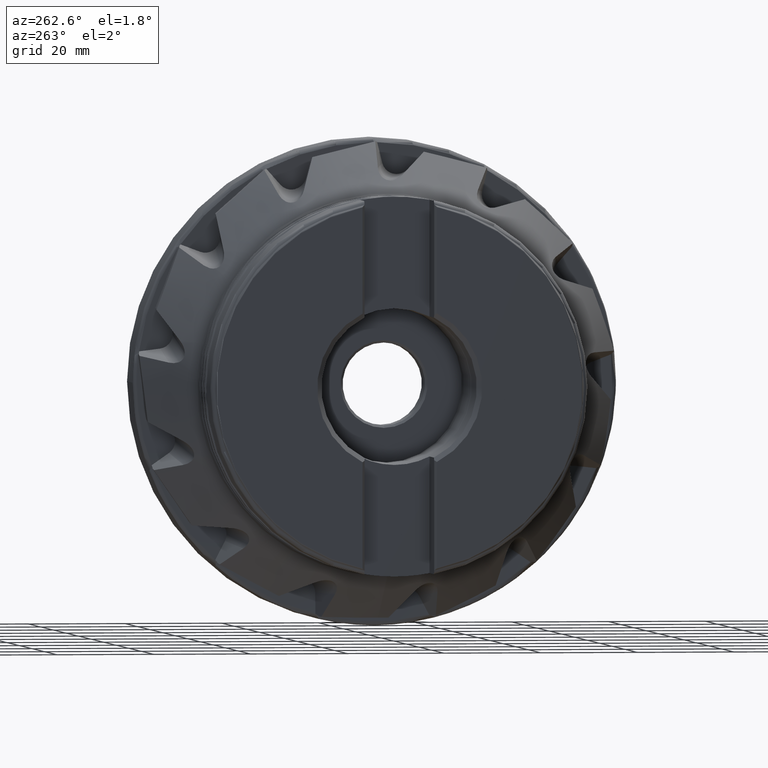
[diagram: clean part render]
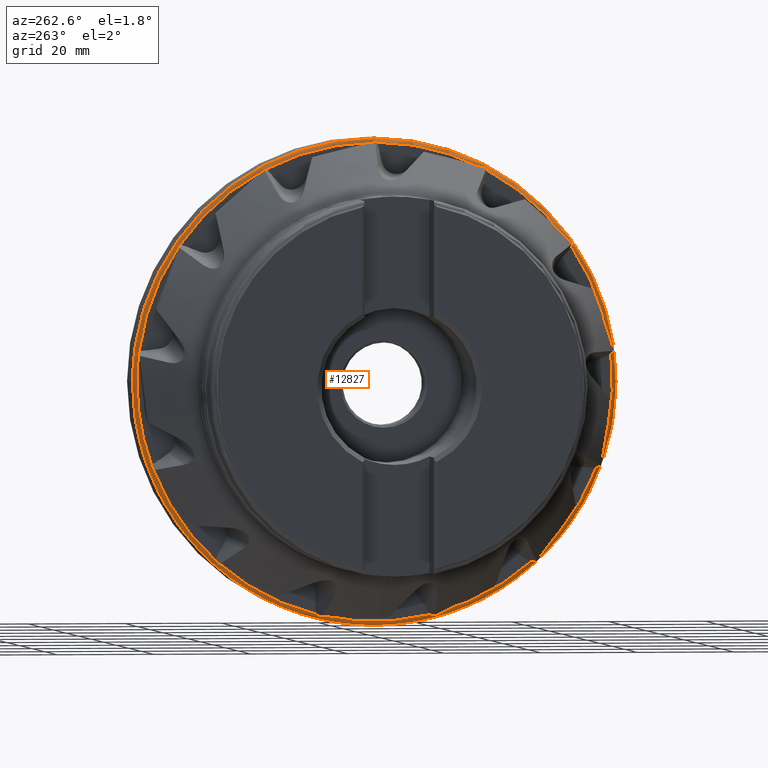
[diagram: same view with one face highlighted and labeled with its STEP entity id]
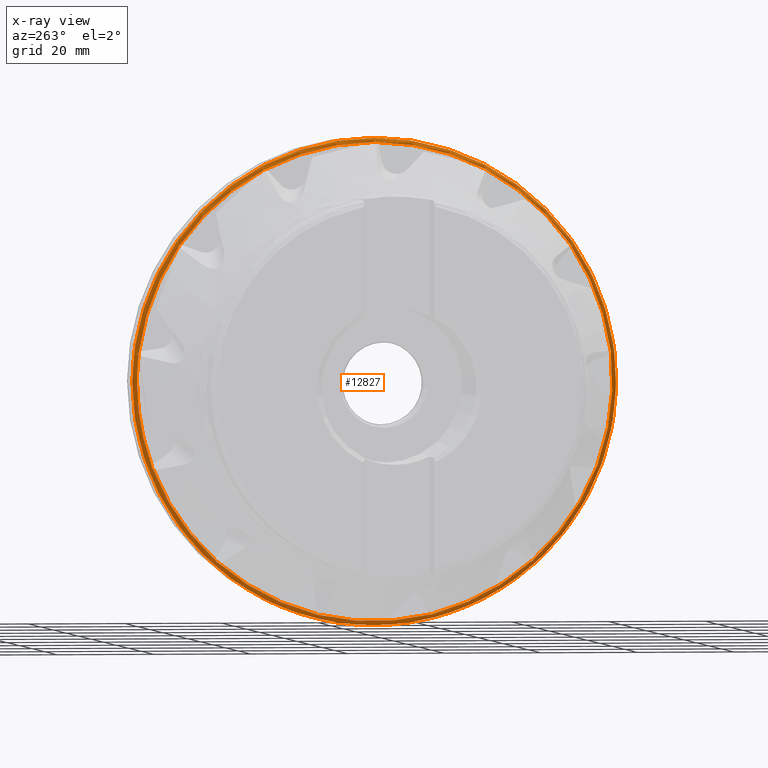
[diagram: x-ray of the same camera — body ghosted, the highlighted face saturated]
A machine part, auxiliary view. The second image highlights one B-rep face of the part: STEP entity #12827.
The next image is the same camera in x-ray: the body ghosted, the highlighted face saturated — about 0% of this face is hidden behind the body in this view.
In plain terms, the highlighted toroidal blend (fillet) surface has major radius 49.1892 mm and minor (blend) radius 0.8 mm.
Its self-contained STEP definition (entity closure, byte-faithful):
#8 = CARTESIAN_POINT ( 'NONE',  ( -9.529555263469744000, -0.3690522359355521400, 49.16599106609748300 ) ) ;
#62 = ORIENTED_EDGE ( 'NONE', *, *, #986, .T. ) ;
#73 = B_SPLINE_CURVE_WITH_KNOTS ( 'NONE', 3,
 ( #3012, #3986, #10963, #4997 ),
 .UNSPECIFIED., .F., .F.,
 ( 4, 4 ),
 ( 0.003973531200708417500, 0.004359960465216587000 ),
 .UNSPECIFIED. ) ;
#113 = VERTEX_POINT ( 'NONE', #297 ) ;
#178 = CARTESIAN_POINT ( 'NONE',  ( -9.527000476006922000, -3.366713401751077900E-013, 49.25675642812401400 ) ) ;
#229 = CARTESIAN_POINT ( 'NONE',  ( -9.527000476006877600, 48.89761921548504400, 5.937245899991292000 ) ) ;
#297 = CARTESIAN_POINT ( 'NONE',  ( -9.527000476006866900, -32.66327125893650400, -36.86921160649718800 ) ) ;
#301 = B_SPLINE_CURVE_WITH_KNOTS ( 'NONE', 3,
 ( #6147, #1213, #8182, #2210 ),
 .UNSPECIFIED., .F., .F.,
 ( 4, 4 ),
 ( 3.798845344109975500E-005, 0.0004180356619418391600 ),
 .UNSPECIFIED. ) ;
#302 = CARTESIAN_POINT ( 'NONE',  ( -9.530359929648117400, -48.80796984753448000, 6.174344194009345100 ) ) ;
#418 = CARTESIAN_POINT ( 'NONE',  ( -9.529555263469749300, 40.67246296300684300, 27.62574222690248900 ) ) ;
#430 = ORIENTED_EDGE ( 'NONE', *, *, #6085, .T. ) ;
#476 = ORIENTED_EDGE ( 'NONE', *, *, #5592, .T. ) ;
#495 = CARTESIAN_POINT ( 'NONE',  ( -9.527000476006911400, 11.78791338524697200, -47.82544460683508400 ) ) ;
#501 = EDGE_CURVE ( 'NONE', #11045, #4005, #12489, .T. ) ;
#586 = EDGE_CURVE ( 'NONE', #7956, #9342, #8381, .T. ) ;
#684 = CARTESIAN_POINT ( 'NONE',  ( -9.527000476006897100, 46.05586732229521400, -17.46668654927648100 ) ) ;
#699 = B_SPLINE_CURVE_WITH_KNOTS ( 'NONE', 3,
 ( #10317, #7297, #11309, #5337 ),
 .UNSPECIFIED., .F., .F.,
 ( 4, 4 ),
 ( 7.582066673529437800E-005, 0.0004558755601862572000 ),
 .UNSPECIFIED. ) ;
#708 = VERTEX_POINT ( 'NONE', #10142 ) ;
#778 = CARTESIAN_POINT ( 'NONE',  ( -9.530359931118614000, -12.01247672379837500, -47.70786995004623800 ) ) ;
#788 = B_SPLINE_CURVE_WITH_KNOTS ( 'NONE', 3,
 ( #3315, #9274, #5303, #12251 ),
 .UNSPECIFIED., .F., .F.,
 ( 4, 4 ),
 ( 0.003973405056481388300, 0.004359791218350853000 ),
 .UNSPECIFIED. ) ;
#807 = CARTESIAN_POINT ( 'NONE',  ( -9.529555263469744000, 0.3690522359348623000, 49.16599106609749000 ) ) ;
#820 = EDGE_CURVE ( 'NONE', #2797, #10428, #5781, .T. ) ;
#845 = CIRCLE ( 'NONE', #9418, 49.16737614581875000 ) ;
#860 = ORIENTED_EDGE ( 'NONE', *, *, #5242, .T. ) ;
#961 = CARTESIAN_POINT ( 'NONE',  ( -9.529555263469744000, -2.261813270860574400E-015, 0.0000000000000000000 ) ) ;
#986 = EDGE_CURVE ( 'NONE', #10224, #7956, #4438, .T. ) ;
#1012 = CARTESIAN_POINT ( 'NONE',  ( -9.527000476006911400, 11.78791338524697200, -47.82544460683508400 ) ) ;
#1057 = EDGE_CURVE ( 'NONE', #4312, #10224, #788, .T. ) ;
#1141 = CARTESIAN_POINT ( 'NONE',  ( -9.529555263469744000, -2.261813270860574400E-015, 0.0000000000000000000 ) ) ;
#1200 = ORIENTED_EDGE ( 'NONE', *, *, #1422, .T. ) ;
#1213 = CARTESIAN_POINT ( 'NONE',  ( -9.529552357068366700, -11.66122848706423700, -47.82563648373594100 ) ) ;
#1233 = CARTESIAN_POINT ( 'NONE',  ( -9.527000476006877600, 48.89761921548504400, 5.937245899991292000 ) ) ;
#1288 = DIRECTION ( 'NONE',  ( 1.000000000000000000, 1.224983210366505700E-016, -0.0000000000000000000 ) ) ;
#1371 = ORIENTED_EDGE ( 'NONE', *, *, #11529, .T. ) ;
#1397 = CARTESIAN_POINT ( 'NONE',  ( -9.527000476006907800, -48.89761921548513600, 5.937245899990601000 ) ) ;
#1402 = CIRCLE ( 'NONE', #4222, 49.16737614581875000 ) ;
#1422 = EDGE_CURVE ( 'NONE', #1866, #5831, #8687, .T. ) ;
#1443 = CARTESIAN_POINT ( 'NONE',  ( -9.529552363207638900, -45.98405983653486800, -17.57105542612537300 ) ) ;
#1487 = CARTESIAN_POINT ( 'NONE',  ( -9.527000476006890000, -40.53751582659995700, 27.98102686514012700 ) ) ;
#1656 = VERTEX_POINT ( 'NONE', #9145 ) ;
#1672 = CIRCLE ( 'NONE', #4488, 49.16737614581875000 ) ;
#1693 = ORIENTED_EDGE ( 'NONE', *, *, #2544, .T. ) ;
#1772 = ORIENTED_EDGE ( 'NONE', *, *, #6009, .T. ) ;
#1782 = CARTESIAN_POINT ( 'NONE',  ( -9.529555263469744000, -2.261813270860574400E-015, 0.0000000000000000000 ) ) ;
#1784 = FACE_OUTER_BOUND ( 'NONE', #7649, .T. ) ;
#1820 = DIRECTION ( 'NONE',  ( 1.000000000000000000, 1.224983210366505700E-016, -0.0000000000000000000 ) ) ;
#1863 = AXIS2_PLACEMENT_3D ( 'NONE', #8218, #2232, #9210 ) ;
#1866 = VERTEX_POINT ( 'NONE', #11747 ) ;
#1944 = DIRECTION ( 'NONE',  ( -1.058460067605822300E-016, 1.000000000000000000, 0.0000000000000000000 ) ) ;
#2012 = DIRECTION ( 'NONE',  ( 1.000000000000000000, 1.224983210366505700E-016, -0.0000000000000000000 ) ) ;
#2055 = DIRECTION ( 'NONE',  ( -1.058460067605822300E-016, 1.000000000000000000, 0.0000000000000000000 ) ) ;
#2131 = CARTESIAN_POINT ( 'NONE',  ( -9.529552349694753800, -22.98570806334397400, 43.53082802121889500 ) ) ;
#2148 = CARTESIAN_POINT ( 'NONE',  ( -9.527000476006898900, 32.66327125893703000, -36.86921160649674100 ) ) ;
#2153 = DIRECTION ( 'NONE',  ( -1.058460067605822300E-016, 1.000000000000000000, 0.0000000000000000000 ) ) ;
#2210 = CARTESIAN_POINT ( 'NONE',  ( -9.529555263469742200, -11.40786356365526400, -47.82563670226935000 ) ) ;
#2232 = DIRECTION ( 'NONE',  ( 1.000000000000000000, 1.224983210366505700E-016, -0.0000000000000000000 ) ) ;
#2245 = VERTEX_POINT ( 'NONE', #8945 ) ;
#2282 = DIRECTION ( 'NONE',  ( 1.000000000000000000, 1.224983210366505700E-016, -0.0000000000000000000 ) ) ;
#2300 = VERTEX_POINT ( 'NONE', #8993 ) ;
#2412 = VERTEX_POINT ( 'NONE', #7461 ) ;
#2436 = CARTESIAN_POINT ( 'NONE',  ( -9.527000476006897100, 46.05586732229521400, -17.46668654927648100 ) ) ;
#2456 = CARTESIAN_POINT ( 'NONE',  ( -9.527000476006893600, 22.89075609186480900, 43.61469178341502600 ) ) ;
#2544 = EDGE_CURVE ( 'NONE', #12380, #2797, #9228, .T. ) ;
#2625 = ORIENTED_EDGE ( 'NONE', *, *, #6796, .T. ) ;
#2645 = ORIENTED_EDGE ( 'NONE', *, *, #10361, .T. ) ;
#2679 = ORIENTED_EDGE ( 'NONE', *, *, #10983, .T. ) ;
#2702 = CARTESIAN_POINT ( 'NONE',  ( -9.529554695824892000, 0.1231623573212059800, 49.22659743396058500 ) ) ;
#2750 = CARTESIAN_POINT ( 'NONE',  ( -9.529555263469744000, -0.3690522359355521400, 49.16599106609748300 ) ) ;
#2758 = EDGE_CURVE ( 'NONE', #5831, #8880, #699, .T. ) ;
#2772 = CARTESIAN_POINT ( 'NONE',  ( -9.529555263469738700, -48.85199996650111800, 5.559943914951157100 ) ) ;
#2778 = VERTEX_POINT ( 'NONE', #1397 ) ;
#2784 = CARTESIAN_POINT ( 'NONE',  ( -9.527000476006890000, -11.78791338524661800, -47.82544460683507700 ) ) ;
#2788 = VERTEX_POINT ( 'NONE', #8363 ) ;
#2797 = VERTEX_POINT ( 'NONE', #8416 ) ;
#2800 = DIRECTION ( 'NONE',  ( -1.058460067605822300E-016, 1.000000000000000000, 0.0000000000000000000 ) ) ;
#2810 = CARTESIAN_POINT ( 'NONE',  ( -9.529554584087431800, 40.58265767944000400, 27.86253915441036400 ) ) ;
#2908 = CARTESIAN_POINT ( 'NONE',  ( -9.529555263469738700, -46.10186796096356000, -17.08943087332955800 ) ) ;
#2931 = CARTESIAN_POINT ( 'NONE',  ( -9.530360670317463700, -32.43904567632778700, -36.98717960858468200 ) ) ;
#2999 = AXIS2_PLACEMENT_3D ( 'NONE', #9120, #3150, #10120 ) ;
#3012 = CARTESIAN_POINT ( 'NONE',  ( -9.529555263469740500, -22.52179579882315600, 43.70583017242137200 ) ) ;
#3053 = CARTESIAN_POINT ( 'NONE',  ( -9.529555263469745800, 11.40786356365525700, -47.82563670226935000 ) ) ;
#3150 = DIRECTION ( 'NONE',  ( 1.000000000000000000, 1.224983210366505700E-016, -0.0000000000000000000 ) ) ;
#3155 = CARTESIAN_POINT ( 'NONE',  ( -9.527000476006890000, -40.53751582659995700, 27.98102686514012700 ) ) ;
#3202 = B_SPLINE_CURVE_WITH_KNOTS ( 'NONE', 3,
 ( #7721, #6693, #8734, #2772 ),
 .UNSPECIFIED., .F., .F.,
 ( 4, 4 ),
 ( 1.937035616743711600E-005, 0.0003994159684797199500 ),
 .UNSPECIFIED. ) ;
#3220 = ORIENTED_EDGE ( 'NONE', *, *, #7514, .T. ) ;
#3237 = CARTESIAN_POINT ( 'NONE',  ( -9.530360637843589400, 48.80800939843585000, 6.174240057019407100 ) ) ;
#3244 = CARTESIAN_POINT ( 'NONE',  ( -9.530360660574690000, 32.80740741876908800, -36.66083909056788300 ) ) ;
#3294 = CARTESIAN_POINT ( 'NONE',  ( -9.529555263469744000, -2.261813270860574400E-015, 0.0000000000000000000 ) ) ;
#3306 = CARTESIAN_POINT ( 'NONE',  ( -9.527000476006907800, -48.89761921548513600, 5.937245899990601000 ) ) ;
#3315 = CARTESIAN_POINT ( 'NONE',  ( -9.529555263469738700, -46.10186796096356000, -17.08943087332955800 ) ) ;
#3450 = CARTESIAN_POINT ( 'NONE',  ( -9.529555263469738700, -45.84013250809036300, -17.77957054332709700 ) ) ;
#3585 = DIRECTION ( 'NONE',  ( 1.000000000000000000, 1.224983210366505700E-016, -0.0000000000000000000 ) ) ;
#3637 = CARTESIAN_POINT ( 'NONE',  ( -9.529555263469744000, -2.261813270860574400E-015, 0.0000000000000000000 ) ) ;
#3686 = CARTESIAN_POINT ( 'NONE',  ( -9.529555263469738700, -48.85199996650111800, 5.559943914951157100 ) ) ;
#3694 = EDGE_CURVE ( 'NONE', #5437, #10447, #7538, .T. ) ;
#3699 = CARTESIAN_POINT ( 'NONE',  ( -9.529552393802236000, -0.1230513557068145100, 49.22662461513130000 ) ) ;
#3752 = CARTESIAN_POINT ( 'NONE',  ( -9.529554681198773000, 45.98399461064482800, -17.57115022895536400 ) ) ;
#3773 = DIRECTION ( 'NONE',  ( 1.000000000000000000, 1.224983210366505700E-016, -0.0000000000000000000 ) ) ;
#3775 = ORIENTED_EDGE ( 'NONE', *, *, #10794, .T. ) ;
#3786 = ORIENTED_EDGE ( 'NONE', *, *, #11675, .T. ) ;
#3809 = VERTEX_POINT ( 'NONE', #4909 ) ;
#3822 = AXIS2_PLACEMENT_3D ( 'NONE', #7897, #2012, #2055 ) ;
#3871 = CARTESIAN_POINT ( 'NONE',  ( -9.529555263469745800, 22.52179579882254100, 43.70583017242169200 ) ) ;
#3986 = CARTESIAN_POINT ( 'NONE',  ( -9.530359955258848700, -22.64470528756684000, 43.67559802015481600 ) ) ;
#3988 = CARTESIAN_POINT ( 'NONE',  ( -9.529555263469745800, 12.12452006102334500, -47.64899674027007800 ) ) ;
#4005 = VERTEX_POINT ( 'NONE', #4741 ) ;
#4017 = CARTESIAN_POINT ( 'NONE',  ( -9.527000476006879400, -46.05586732229497900, -17.46668654927711400 ) ) ;
#4039 = CARTESIAN_POINT ( 'NONE',  ( -9.529555263469744000, -2.261813270860574400E-015, 0.0000000000000000000 ) ) ;
#4051 = CARTESIAN_POINT ( 'NONE',  ( -9.530360685971111000, -40.62759542976071000, 27.74421897077083800 ) ) ;
#4194 = CARTESIAN_POINT ( 'NONE',  ( -8.729854214491632900, 0.0000000000000000000, 0.0000000000000000000 ) ) ;
#4221 = CARTESIAN_POINT ( 'NONE',  ( -9.529555263469740500, -32.87932225602734300, -36.55654585773568500 ) ) ;
#4222 = AXIS2_PLACEMENT_3D ( 'NONE', #961, #7926, #1944 ) ;
#4240 = CARTESIAN_POINT ( 'NONE',  ( -9.527000476006895400, -22.89075609186542700, 43.61469178341469900 ) ) ;
#4266 = DIRECTION ( 'NONE',  ( -1.058460067605822300E-016, 1.000000000000000000, 0.0000000000000000000 ) ) ;
#4312 = VERTEX_POINT ( 'NONE', #2908 ) ;
#4426 = B_SPLINE_CURVE_WITH_KNOTS ( 'NONE', 3,
 ( #4636, #10626, #12590, #6615 ),
 .UNSPECIFIED., .F., .F.,
 ( 4, 4 ),
 ( 0.003973258966527260500, 0.004359595210436517100 ),
 .UNSPECIFIED. ) ;
#4430 = CARTESIAN_POINT ( 'NONE',  ( -9.529555263469744000, -2.261813270860574400E-015, 0.0000000000000000000 ) ) ;
#4438 = B_SPLINE_CURVE_WITH_KNOTS ( 'NONE', 3,
 ( #9403, #1443, #5378, #3450 ),
 .UNSPECIFIED., .F., .F.,
 ( 4, 4 ),
 ( 1.280663833692705400E-005, 0.0003928533181187244800 ),
 .UNSPECIFIED. ) ;
#4439 = CARTESIAN_POINT ( 'NONE',  ( -9.529555263469740500, -32.32684312555926500, -37.04599965718173100 ) ) ;
#4488 = AXIS2_PLACEMENT_3D ( 'NONE', #9770, #3773, #10764 ) ;
#4509 = CARTESIAN_POINT ( 'NONE',  ( -9.529554641105278300, 32.55108620174477400, -36.92830775893880700 ) ) ;
#4551 = B_SPLINE_CURVE_WITH_KNOTS ( 'NONE', 3,
 ( #1012, #8803, #9972, #3988 ),
 .UNSPECIFIED., .F., .F.,
 ( 4, 4 ),
 ( 8.108579156445470700E-006, 0.0003881542438638802500 ),
 .UNSPECIFIED. ) ;
#4571 = EDGE_CURVE ( 'NONE', #9342, #113, #4426, .T. ) ;
#4636 = CARTESIAN_POINT ( 'NONE',  ( -9.529555263469740500, -32.87932225602734300, -36.55654585773568500 ) ) ;
#4640 = DIRECTION ( 'NONE',  ( -1.058460067605822300E-016, 1.000000000000000000, 0.0000000000000000000 ) ) ;
#4706 = CARTESIAN_POINT ( 'NONE',  ( -9.530359932790187100, 45.91208194725841500, -17.67544029312967900 ) ) ;
#4741 = CARTESIAN_POINT ( 'NONE',  ( -9.529555263469749300, 40.25317183313264000, 28.23319029859578000 ) ) ;
#4752 = CARTESIAN_POINT ( 'NONE',  ( -9.527000476006897100, 46.05586732229521400, -17.46668654927648100 ) ) ;
#4833 = AXIS2_PLACEMENT_3D ( 'NONE', #9552, #3585, #10554 ) ;
#4875 = EDGE_CURVE ( 'NONE', #5836, #5437, #12184, .T. ) ;
#4895 = ORIENTED_EDGE ( 'NONE', *, *, #9966, .T. ) ;
#4909 = CARTESIAN_POINT ( 'NONE',  ( -9.527000476006890000, -11.78791338524661800, -47.82544460683507700 ) ) ;
#4967 = CARTESIAN_POINT ( 'NONE',  ( -9.529555263469736900, -48.76303130378024500, 6.292666774188377100 ) ) ;
#4997 = CARTESIAN_POINT ( 'NONE',  ( -9.527000476006895400, -22.89075609186542700, 43.61469178341469900 ) ) ;
#5019 = CARTESIAN_POINT ( 'NONE',  ( -9.529555263469745800, 23.17535485100176400, 43.36281592095439000 ) ) ;
#5021 = B_SPLINE_CURVE_WITH_KNOTS ( 'NONE', 3,
 ( #229, #6170, #3237, #10195 ),
 .UNSPECIFIED., .F., .F.,
 ( 4, 4 ),
 ( 3.974549038951963400E-006, 0.0003840192863745159900 ),
 .UNSPECIFIED. ) ;
#5039 = DIRECTION ( 'NONE',  ( -1.058460067605822300E-016, 1.000000000000000000, 0.0000000000000000000 ) ) ;
#5049 = ORIENTED_EDGE ( 'NONE', *, *, #4571, .T. ) ;
#5122 = CARTESIAN_POINT ( 'NONE',  ( -9.529555263469740500, -23.17535485100236800, 43.36281592095407000 ) ) ;
#5128 = ORIENTED_EDGE ( 'NONE', *, *, #9693, .T. ) ;
#5176 = CARTESIAN_POINT ( 'NONE',  ( -9.529555263469749300, 48.85199996650103300, 5.559943914951879200 ) ) ;
#5219 = CARTESIAN_POINT ( 'NONE',  ( -9.529555263469742200, -11.40786356365526400, -47.82563670226935000 ) ) ;
#5242 = EDGE_CURVE ( 'NONE', #3809, #9352, #301, .T. ) ;
#5257 = VERTEX_POINT ( 'NONE', #4240 ) ;
#5271 = ORIENTED_EDGE ( 'NONE', *, *, #6711, .T. ) ;
#5303 = CARTESIAN_POINT ( 'NONE',  ( -9.529554630256470200, -46.07134174944718600, -17.34083644870420900 ) ) ;
#5306 = CARTESIAN_POINT ( 'NONE',  ( -9.529555263469740500, -22.52179579882315600, 43.70583017242137200 ) ) ;
#5337 = CARTESIAN_POINT ( 'NONE',  ( -9.529555263469745800, 22.52179579882254100, 43.70583017242169200 ) ) ;
#5373 = CARTESIAN_POINT ( 'NONE',  ( -9.527000476006898900, 32.66327125893703000, -36.86921160649674100 ) ) ;
#5378 = CARTESIAN_POINT ( 'NONE',  ( -9.530360644440248700, -45.91214557938960200, -17.67534820026840600 ) ) ;
#5406 = ORIENTED_EDGE ( 'NONE', *, *, #6876, .T. ) ;
#5437 = VERTEX_POINT ( 'NONE', #12382 ) ;
#5448 = DIRECTION ( 'NONE',  ( -1.058460067605822300E-016, 1.000000000000000000, 0.0000000000000000000 ) ) ;
#5457 = CARTESIAN_POINT ( 'NONE',  ( -9.529555263469747600, 32.87932225602786200, -36.55654585773521600 ) ) ;
#5480 = AXIS2_PLACEMENT_3D ( 'NONE', #7221, #1288, #8262 ) ;
#5515 = EDGE_CURVE ( 'NONE', #11008, #6133, #8986, .T. ) ;
#5585 = ORIENTED_EDGE ( 'NONE', *, *, #8998, .T. ) ;
#5592 = EDGE_CURVE ( 'NONE', #1656, #3809, #7647, .T. ) ;
#5695 = CARTESIAN_POINT ( 'NONE',  ( -9.529555263469749300, 46.10186796096378000, -17.08943087332895100 ) ) ;
#5716 = CARTESIAN_POINT ( 'NONE',  ( -9.529555263469749300, 40.67246296300684300, 27.62574222690248900 ) ) ;
#5719 = B_SPLINE_CURVE_WITH_KNOTS ( 'NONE', 3,
 ( #9046, #8990, #4051, #11039 ),
 .UNSPECIFIED., .F., .F.,
 ( 4, 4 ),
 ( 6.801025894416662700E-005, 0.0004480657641787717300 ),
 .UNSPECIFIED. ) ;
#5781 = B_SPLINE_CURVE_WITH_KNOTS ( 'NONE', 3,
 ( #10492, #8486, #4509, #11484 ),
 .UNSPECIFIED., .F., .F.,
 ( 4, 4 ),
 ( 0.003973343890819278400, 0.004359709152791491100 ),
 .UNSPECIFIED. ) ;
#5831 = VERTEX_POINT ( 'NONE', #2456 ) ;
#5836 = VERTEX_POINT ( 'NONE', #5457 ) ;
#5873 = CARTESIAN_POINT ( 'NONE',  ( -9.527000476006866900, -32.66327125893650400, -36.86921160649718800 ) ) ;
#5891 = CIRCLE ( 'NONE', #9815, 49.16737614581875000 ) ;
#5897 = B_SPLINE_CURVE_WITH_KNOTS ( 'NONE', 3,
 ( #5176, #11152, #7172, #1233 ),
 .UNSPECIFIED., .F., .F.,
 ( 4, 4 ),
 ( 0.003973160866487983700, 0.004359463590270030000 ),
 .UNSPECIFIED. ) ;
#6009 = EDGE_CURVE ( 'NONE', #9517, #1656, #5891, .T. ) ;
#6023 = CARTESIAN_POINT ( 'NONE',  ( -9.527000476006893600, 22.89075609186480900, 43.61469178341502600 ) ) ;
#6085 = EDGE_CURVE ( 'NONE', #708, #10861, #1402, .T. ) ;
#6133 = VERTEX_POINT ( 'NONE', #178 ) ;
#6147 = CARTESIAN_POINT ( 'NONE',  ( -9.527000476006890000, -11.78791338524661800, -47.82544460683507700 ) ) ;
#6170 = CARTESIAN_POINT ( 'NONE',  ( -9.529552384656401600, 48.85287505577866800, 6.055767659283740800 ) ) ;
#6174 = CIRCLE ( 'NONE', #9700, 49.16737614581875000 ) ;
#6234 = CARTESIAN_POINT ( 'NONE',  ( -9.529555263469736900, -48.76303130378024500, 6.292666774188377100 ) ) ;
#6348 = ORIENTED_EDGE ( 'NONE', *, *, #5515, .T. ) ;
#6414 = CARTESIAN_POINT ( 'NONE',  ( -9.529554651935273000, 11.66111456130800600, -47.82563665628784800 ) ) ;
#6505 = VERTEX_POINT ( 'NONE', #10176 ) ;
#6542 = CARTESIAN_POINT ( 'NONE',  ( -9.529555263469744000, 0.3690522359348623000, 49.16599106609749000 ) ) ;
#6562 = AXIS2_PLACEMENT_3D ( 'NONE', #4430, #11405, #5448 ) ;
#6615 = CARTESIAN_POINT ( 'NONE',  ( -9.527000476006866900, -32.66327125893650400, -36.86921160649718800 ) ) ;
#6693 = CARTESIAN_POINT ( 'NONE',  ( -9.529552375196336900, -48.88253940919921100, 5.811460655602703100 ) ) ;
#6711 = EDGE_CURVE ( 'NONE', #6779, #6505, #6174, .T. ) ;
#6770 = ORIENTED_EDGE ( 'NONE', *, *, #9021, .T. ) ;
#6778 = VERTEX_POINT ( 'NONE', #4967 ) ;
#6779 = VERTEX_POINT ( 'NONE', #11939 ) ;
#6796 = EDGE_CURVE ( 'NONE', #10180, #2788, #5719, .T. ) ;
#6858 = CARTESIAN_POINT ( 'NONE',  ( -9.529552279076607800, -32.55118994770849400, -36.92825310828015300 ) ) ;
#6876 = EDGE_CURVE ( 'NONE', #8666, #10180, #9400, .T. ) ;
#6964 = ORIENTED_EDGE ( 'NONE', *, *, #2758, .T. ) ;
#6973 = ORIENTED_EDGE ( 'NONE', *, *, #11245, .T. ) ;
#7015 = B_SPLINE_CURVE_WITH_KNOTS ( 'NONE', 3,
 ( #6234, #302, #9265, #3306 ),
 .UNSPECIFIED., .F., .F.,
 ( 4, 4 ),
 ( 0.003973060131427903800, 0.004359328434713786700 ),
 .UNSPECIFIED. ) ;
#7142 = CARTESIAN_POINT ( 'NONE',  ( -9.529555263469738700, -40.25317183313303800, 28.23319029859521800 ) ) ;
#7172 = CARTESIAN_POINT ( 'NONE',  ( -9.529554673575413300, 48.88252582750625000, 5.811347366577940900 ) ) ;
#7221 = CARTESIAN_POINT ( 'NONE',  ( -9.529555263469744000, -2.261813270860574400E-015, 0.0000000000000000000 ) ) ;
#7244 = ORIENTED_EDGE ( 'NONE', *, *, #11085, .T. ) ;
#7297 = CARTESIAN_POINT ( 'NONE',  ( -9.529552241555842700, 22.76780391149188200, 43.64519438450340500 ) ) ;
#7335 = ORIENTED_EDGE ( 'NONE', *, *, #8265, .F. ) ;
#7461 = CARTESIAN_POINT ( 'NONE',  ( -8.729854214491634700, 49.98924466802096600, 0.0000000000000000000 ) ) ;
#7514 = EDGE_CURVE ( 'NONE', #10861, #11045, #12077, .T. ) ;
#7538 = B_SPLINE_CURVE_WITH_KNOTS ( 'NONE', 3,
 ( #9703, #4706, #3752, #4752 ),
 .UNSPECIFIED., .F., .F.,
 ( 4, 4 ),
 ( 0.003973117905172174200, 0.004359405949360259900 ),
 .UNSPECIFIED. ) ;
#7572 = CIRCLE ( 'NONE', #12106, 49.16737614581875000 ) ;
#7647 = B_SPLINE_CURVE_WITH_KNOTS ( 'NONE', 3,
 ( #7732, #778, #8742, #2784 ),
 .UNSPECIFIED., .F., .F.,
 ( 4, 4 ),
 ( 0.003973087169060446300, 0.004359364710924095800 ),
 .UNSPECIFIED. ) ;
#7649 = EDGE_LOOP ( 'NONE', ( #7335 ) ) ;
#7703 = CARTESIAN_POINT ( 'NONE',  ( -9.527000476006922000, -3.366713401751077900E-013, 49.25675642812401400 ) ) ;
#7721 = CARTESIAN_POINT ( 'NONE',  ( -9.527000476006907800, -48.89761921548513600, 5.937245899990601000 ) ) ;
#7732 = CARTESIAN_POINT ( 'NONE',  ( -9.529555263469742200, -12.12452006102265900, -47.64899674027026300 ) ) ;
#7765 = B_SPLINE_CURVE_WITH_KNOTS ( 'NONE', 3,
 ( #2148, #9161, #3244, #10203 ),
 .UNSPECIFIED., .F., .F.,
 ( 4, 4 ),
 ( 3.434774104459206500E-005, 0.0004143985472023762000 ),
 .UNSPECIFIED. ) ;
#7788 = CARTESIAN_POINT ( 'NONE',  ( -9.529555263469744000, -2.261813270860574400E-015, 0.0000000000000000000 ) ) ;
#7897 = CARTESIAN_POINT ( 'NONE',  ( -9.529555263469744000, -2.261813270860574400E-015, 0.0000000000000000000 ) ) ;
#7917 = EDGE_CURVE ( 'NONE', #6133, #11981, #10846, .T. ) ;
#7926 = DIRECTION ( 'NONE',  ( 1.000000000000000000, 1.224983210366505700E-016, -0.0000000000000000000 ) ) ;
#7927 = EDGE_CURVE ( 'NONE', #12111, #5257, #73, .T. ) ;
#7956 = VERTEX_POINT ( 'NONE', #11017 ) ;
#8100 = ORIENTED_EDGE ( 'NONE', *, *, #820, .T. ) ;
#8131 = DIRECTION ( 'NONE',  ( 1.000000000000000000, 1.224983210366505700E-016, -0.0000000000000000000 ) ) ;
#8182 = CARTESIAN_POINT ( 'NONE',  ( -9.530360646328473400, -11.53454525457213000, -47.82569725931069400 ) ) ;
#8188 = ORIENTED_EDGE ( 'NONE', *, *, #12163, .T. ) ;
#8218 = CARTESIAN_POINT ( 'NONE',  ( -9.529555263469744000, -2.261813270860574400E-015, 0.0000000000000000000 ) ) ;
#8222 = CIRCLE ( 'NONE', #10669, 49.16737614581875000 ) ;
#8262 = DIRECTION ( 'NONE',  ( -1.058460067605822300E-016, 1.000000000000000000, 0.0000000000000000000 ) ) ;
#8265 = EDGE_CURVE ( 'NONE', #2412, #2412, #11013, .T. ) ;
#8282 = AXIS2_PLACEMENT_3D ( 'NONE', #4194, #2282, #9247 ) ;
#8363 = CARTESIAN_POINT ( 'NONE',  ( -9.529555263469738700, -40.67246296300722000, 27.62574222690192700 ) ) ;
#8381 = CIRCLE ( 'NONE', #3822, 49.16737614581875000 ) ;
#8416 = CARTESIAN_POINT ( 'NONE',  ( -9.529555263469747600, 32.32684312555974100, -37.04599965718130500 ) ) ;
#8486 = CARTESIAN_POINT ( 'NONE',  ( -9.530359945077696800, 32.43894464198342600, -36.98723257391376500 ) ) ;
#8494 = TOROIDAL_SURFACE ( 'NONE', #8282, 49.18924466802096200, 0.8000000000000012700 ) ;
#8612 = B_SPLINE_CURVE_WITH_KNOTS ( 'NONE', 3,
 ( #9096, #2131, #11087, #5122 ),
 .UNSPECIFIED., .F., .F.,
 ( 4, 4 ),
 ( 1.836492889201361000E-005, 0.0003984127563696754500 ),
 .UNSPECIFIED. ) ;
#8666 = VERTEX_POINT ( 'NONE', #11494 ) ;
#8687 = B_SPLINE_CURVE_WITH_KNOTS ( 'NONE', 3,
 ( #5019, #11006, #11992, #6023 ),
 .UNSPECIFIED., .F., .F.,
 ( 4, 4 ),
 ( 0.003973154282460136500, 0.004359454756524380100 ),
 .UNSPECIFIED. ) ;
#8717 = CARTESIAN_POINT ( 'NONE',  ( -9.530360635030737300, -0.2460679021923784000, 49.19636635037224400 ) ) ;
#8734 = CARTESIAN_POINT ( 'NONE',  ( -9.530360640753013300, -48.86732976636076100, 5.685693783825811000 ) ) ;
#8742 = CARTESIAN_POINT ( 'NONE',  ( -9.529554686653185100, -11.90027894510022000, -47.76668750785657400 ) ) ;
#8752 = DIRECTION ( 'NONE',  ( 1.000000000000000000, 1.224983210366505700E-016, -0.0000000000000000000 ) ) ;
#8788 = DIRECTION ( 'NONE',  ( -1.058460067605822300E-016, 1.000000000000000000, 0.0000000000000000000 ) ) ;
#8803 = CARTESIAN_POINT ( 'NONE',  ( -9.529552374620349700, 11.90017723347145100, -47.76674069390639200 ) ) ;
#8825 = VERTEX_POINT ( 'NONE', #3686 ) ;
#8880 = VERTEX_POINT ( 'NONE', #3871 ) ;
#8945 = CARTESIAN_POINT ( 'NONE',  ( -9.527000476006911400, 11.78791338524697200, -47.82544460683508400 ) ) ;
#8955 = ORIENTED_EDGE ( 'NONE', *, *, #9129, .T. ) ;
#8985 = B_SPLINE_CURVE_WITH_KNOTS ( 'NONE', 3,
 ( #684, #11617, #11661, #5695 ),
 .UNSPECIFIED., .F., .F.,
 ( 4, 4 ),
 ( 5.661771980883240900E-005, 0.0004366664237169800600 ),
 .UNSPECIFIED. ) ;
#8986 = B_SPLINE_CURVE_WITH_KNOTS ( 'NONE', 3,
 ( #6542, #12502, #2702, #9667 ),
 .UNSPECIFIED., .F., .F.,
 ( 4, 4 ),
 ( 0.003973035490304902300, 0.004359295373884256000 ),
 .UNSPECIFIED. ) ;
#8990 = CARTESIAN_POINT ( 'NONE',  ( -9.529552228189352500, -40.58261604079372400, 27.86264844695343600 ) ) ;
#8993 = CARTESIAN_POINT ( 'NONE',  ( -9.527000476006877600, 48.89761921548504400, 5.937245899991292000 ) ) ;
#8998 = EDGE_CURVE ( 'NONE', #11981, #12111, #7572, .T. ) ;
#9021 = EDGE_CURVE ( 'NONE', #11584, #8666, #12828, .T. ) ;
#9046 = CARTESIAN_POINT ( 'NONE',  ( -9.527000476006890000, -40.53751582659995700, 27.98102686514012700 ) ) ;
#9053 = CARTESIAN_POINT ( 'NONE',  ( -9.529555263469745800, 12.12452006102334500, -47.64899674027007800 ) ) ;
#9096 = CARTESIAN_POINT ( 'NONE',  ( -9.527000476006895400, -22.89075609186542700, 43.61469178341469900 ) ) ;
#9112 = ORIENTED_EDGE ( 'NONE', *, *, #501, .T. ) ;
#9120 = CARTESIAN_POINT ( 'NONE',  ( -9.529555263469744000, -2.261813270860574400E-015, 0.0000000000000000000 ) ) ;
#9128 = ORIENTED_EDGE ( 'NONE', *, *, #12155, .T. ) ;
#9129 = EDGE_CURVE ( 'NONE', #113, #9517, #11474, .T. ) ;
#9145 = CARTESIAN_POINT ( 'NONE',  ( -9.529555263469742200, -12.12452006102265900, -47.64899674027026300 ) ) ;
#9161 = CARTESIAN_POINT ( 'NONE',  ( -9.529552310750700500, 32.73539308606742500, -36.76506286811908100 ) ) ;
#9210 = DIRECTION ( 'NONE',  ( -1.058460067605822300E-016, 1.000000000000000000, 0.0000000000000000000 ) ) ;
#9228 = CIRCLE ( 'NONE', #2999, 49.16737614581875000 ) ;
#9247 = DIRECTION ( 'NONE',  ( -1.224983210366505700E-016, 1.000000000000000000, 0.0000000000000000000 ) ) ;
#9265 = CARTESIAN_POINT ( 'NONE',  ( -9.529554691451529900, -48.85283460934026300, 6.055874796909023400 ) ) ;
#9274 = CARTESIAN_POINT ( 'NONE',  ( -9.530359948402665500, -46.08667146634958600, -17.21508722615443100 ) ) ;
#9342 = VERTEX_POINT ( 'NONE', #4221 ) ;
#9352 = VERTEX_POINT ( 'NONE', #5219 ) ;
#9385 = CARTESIAN_POINT ( 'NONE',  ( -9.529555263469749300, 40.25317183313264000, 28.23319029859578000 ) ) ;
#9400 = B_SPLINE_CURVE_WITH_KNOTS ( 'NONE', 3,
 ( #7142, #11074, #10166, #1487 ),
 .UNSPECIFIED., .F., .F.,
 ( 4, 4 ),
 ( 0.003973199445798502500, 0.004359515351873377200 ),
 .UNSPECIFIED. ) ;
#9403 = CARTESIAN_POINT ( 'NONE',  ( -9.527000476006879400, -46.05586732229497900, -17.46668654927711400 ) ) ;
#9410 = CARTESIAN_POINT ( 'NONE',  ( -9.529555263469745800, 11.40786356365525700, -47.82563670226935000 ) ) ;
#9418 = AXIS2_PLACEMENT_3D ( 'NONE', #3294, #10254, #4266 ) ;
#9430 = CARTESIAN_POINT ( 'NONE',  ( -9.530360653760361300, 40.34803547249789100, 28.14922935179617300 ) ) ;
#9517 = VERTEX_POINT ( 'NONE', #4439 ) ;
#9524 = CARTESIAN_POINT ( 'NONE',  ( -9.527000476006922000, 40.53751582659956700, 27.98102686514068800 ) ) ;
#9552 = CARTESIAN_POINT ( 'NONE',  ( -8.729854214491627600, -2.163851235029507000E-015, 0.0000000000000000000 ) ) ;
#9667 = CARTESIAN_POINT ( 'NONE',  ( -9.527000476006922000, -3.366713401751077900E-013, 49.25675642812401400 ) ) ;
#9693 = EDGE_CURVE ( 'NONE', #5257, #11584, #8612, .T. ) ;
#9700 = AXIS2_PLACEMENT_3D ( 'NONE', #3637, #10631, #4640 ) ;
#9703 = CARTESIAN_POINT ( 'NONE',  ( -9.529555263469749300, 45.84013250809061200, -17.77957054332644300 ) ) ;
#9768 = CARTESIAN_POINT ( 'NONE',  ( -9.527000476006922000, 40.53751582659956700, 27.98102686514068800 ) ) ;
#9770 = CARTESIAN_POINT ( 'NONE',  ( -9.529555263469744000, -2.261813270860574400E-015, 0.0000000000000000000 ) ) ;
#9774 = ORIENTED_EDGE ( 'NONE', *, *, #12314, .T. ) ;
#9815 = AXIS2_PLACEMENT_3D ( 'NONE', #1782, #8752, #2800 ) ;
#9873 = CARTESIAN_POINT ( 'NONE',  ( -9.529555263469740500, -32.32684312555926500, -37.04599965718173100 ) ) ;
#9888 = CIRCLE ( 'NONE', #11902, 49.16737614581875000 ) ;
#9966 = EDGE_CURVE ( 'NONE', #10447, #6779, #8985, .T. ) ;
#9972 = CARTESIAN_POINT ( 'NONE',  ( -9.530360640930341600, 12.01237788836702700, -47.70792188315753900 ) ) ;
#10120 = DIRECTION ( 'NONE',  ( -1.058460067605822300E-016, 1.000000000000000000, 0.0000000000000000000 ) ) ;
#10125 = ORIENTED_EDGE ( 'NONE', *, *, #586, .T. ) ;
#10142 = CARTESIAN_POINT ( 'NONE',  ( -9.529555263469749300, 48.76303130378016000, 6.292666774189047600 ) ) ;
#10166 = CARTESIAN_POINT ( 'NONE',  ( -9.529554666730149400, -40.44273234734638600, 28.06525427729043500 ) ) ;
#10176 = CARTESIAN_POINT ( 'NONE',  ( -9.529555263469749300, 48.85199996650103300, 5.559943914951879200 ) ) ;
#10180 = VERTEX_POINT ( 'NONE', #3155 ) ;
#10195 = CARTESIAN_POINT ( 'NONE',  ( -9.529555263469749300, 48.76303130378016000, 6.292666774189047600 ) ) ;
#10203 = CARTESIAN_POINT ( 'NONE',  ( -9.529555263469747600, 32.87932225602786200, -36.55654585773521600 ) ) ;
#10213 = ORIENTED_EDGE ( 'NONE', *, *, #7927, .T. ) ;
#10224 = VERTEX_POINT ( 'NONE', #4017 ) ;
#10254 = DIRECTION ( 'NONE',  ( 1.000000000000000000, 1.224983210366505700E-016, -0.0000000000000000000 ) ) ;
#10317 = CARTESIAN_POINT ( 'NONE',  ( -9.527000476006893600, 22.89075609186480900, 43.61469178341502600 ) ) ;
#10361 = EDGE_CURVE ( 'NONE', #6778, #2778, #7015, .T. ) ;
#10420 = CARTESIAN_POINT ( 'NONE',  ( -9.530359941758535000, 11.53443443012237100, -47.82569720633381400 ) ) ;
#10428 = VERTEX_POINT ( 'NONE', #5373 ) ;
#10447 = VERTEX_POINT ( 'NONE', #2436 ) ;
#10492 = CARTESIAN_POINT ( 'NONE',  ( -9.529555263469747600, 32.32684312555974100, -37.04599965718130500 ) ) ;
#10519 = CARTESIAN_POINT ( 'NONE',  ( -9.529552332905215200, 40.44281895327019100, 28.06517731669691400 ) ) ;
#10548 = CIRCLE ( 'NONE', #6562, 49.16737614581875000 ) ;
#10554 = DIRECTION ( 'NONE',  ( -1.388077365439003300E-016, 1.000000000000000000, 0.0000000000000000000 ) ) ;
#10626 = CARTESIAN_POINT ( 'NONE',  ( -9.530359940460634500, -32.80747171858351400, -36.66074584088820400 ) ) ;
#10631 = DIRECTION ( 'NONE',  ( 1.000000000000000000, 1.224983210366505700E-016, -0.0000000000000000000 ) ) ;
#10669 = AXIS2_PLACEMENT_3D ( 'NONE', #4039, #11025, #5039 ) ;
#10701 = ORIENTED_EDGE ( 'NONE', *, *, #1057, .T. ) ;
#10764 = DIRECTION ( 'NONE',  ( -1.058460067605822300E-016, 1.000000000000000000, 0.0000000000000000000 ) ) ;
#10794 = EDGE_CURVE ( 'NONE', #9352, #11176, #845, .T. ) ;
#10846 = B_SPLINE_CURVE_WITH_KNOTS ( 'NONE', 3,
 ( #7703, #3699, #8717, #2750 ),
 .UNSPECIFIED., .F., .F.,
 ( 4, 4 ),
 ( 2.058998339313471200E-007, 0.0003802497638324908900 ),
 .UNSPECIFIED. ) ;
#10861 = VERTEX_POINT ( 'NONE', #418 ) ;
#10963 = CARTESIAN_POINT ( 'NONE',  ( -9.529554607886582900, -22.76768989415085900, 43.64522267050401900 ) ) ;
#10983 = EDGE_CURVE ( 'NONE', #2778, #8825, #3202, .T. ) ;
#11005 = EDGE_CURVE ( 'NONE', #4005, #1866, #1672, .T. ) ;
#11006 = CARTESIAN_POINT ( 'NONE',  ( -9.530359934768432200, 23.08065614130048400, 43.44679248882805200 ) ) ;
#11008 = VERTEX_POINT ( 'NONE', #807 ) ;
#11013 = CIRCLE ( 'NONE', #4833, 49.98924466802096600 ) ;
#11017 = CARTESIAN_POINT ( 'NONE',  ( -9.529555263469738700, -45.84013250809036300, -17.77957054332709700 ) ) ;
#11025 = DIRECTION ( 'NONE',  ( 1.000000000000000000, 1.224983210366505700E-016, -0.0000000000000000000 ) ) ;
#11039 = CARTESIAN_POINT ( 'NONE',  ( -9.529555263469738700, -40.67246296300722000, 27.62574222690192700 ) ) ;
#11045 = VERTEX_POINT ( 'NONE', #12812 ) ;
#11048 = ORIENTED_EDGE ( 'NONE', *, *, #4875, .T. ) ;
#11065 = CARTESIAN_POINT ( 'NONE',  ( -9.529555263469740500, -23.17535485100236800, 43.36281592095407000 ) ) ;
#11074 = CARTESIAN_POINT ( 'NONE',  ( -9.530359937224307700, -40.34795107463761400, 28.14930404979725900 ) ) ;
#11085 = EDGE_CURVE ( 'NONE', #2245, #12380, #4551, .T. ) ;
#11087 = CARTESIAN_POINT ( 'NONE',  ( -9.530360648596349900, -23.08057213360282100, 43.44686698486044200 ) ) ;
#11152 = CARTESIAN_POINT ( 'NONE',  ( -9.530359935126471200, 48.86731633524691900, 5.685583608820417500 ) ) ;
#11176 = VERTEX_POINT ( 'NONE', #3053 ) ;
#11245 = EDGE_CURVE ( 'NONE', #6505, #2300, #5897, .T. ) ;
#11246 = EDGE_CURVE ( 'NONE', #2300, #708, #5021, .T. ) ;
#11309 = CARTESIAN_POINT ( 'NONE',  ( -9.530360681859276500, 22.64481626929721600, 43.67557072188366600 ) ) ;
#11405 = DIRECTION ( 'NONE',  ( 1.000000000000000000, 1.224983210366505700E-016, -0.0000000000000000000 ) ) ;
#11460 = ORIENTED_EDGE ( 'NONE', *, *, #11005, .T. ) ;
#11474 = B_SPLINE_CURVE_WITH_KNOTS ( 'NONE', 3,
 ( #5873, #6858, #2931, #9873 ),
 .UNSPECIFIED., .F., .F.,
 ( 4, 4 ),
 ( 4.729986776208352600E-005, 0.0004273527363131330100 ),
 .UNSPECIFIED. ) ;
#11484 = CARTESIAN_POINT ( 'NONE',  ( -9.527000476006898900, 32.66327125893703000, -36.86921160649674100 ) ) ;
#11494 = CARTESIAN_POINT ( 'NONE',  ( -9.529555263469738700, -40.25317183313303800, 28.23319029859521800 ) ) ;
#11529 = EDGE_CURVE ( 'NONE', #2788, #6778, #8222, .T. ) ;
#11584 = VERTEX_POINT ( 'NONE', #11065 ) ;
#11617 = CARTESIAN_POINT ( 'NONE',  ( -9.529552338876701600, 46.07132786704800500, -17.34094935119397000 ) ) ;
#11628 = EDGE_LOOP ( 'NONE', ( #476, #860, #3775, #8188, #7244, #1693, #8100, #3786, #11048, #12394, #4895, #5271, #6973, #12693, #430, #3220, #9112, #11460, #1200, #6964, #9128, #6348, #12547, #5585, #10213, #5128, #6770, #5406, #2625, #1371, #2645, #2679, #9774, #10701, #62, #10125, #5049, #8955, #1772 ) ) ;
#11661 = CARTESIAN_POINT ( 'NONE',  ( -9.530360651923683000, 46.08665818033832600, -17.21519708515683400 ) ) ;
#11675 = EDGE_CURVE ( 'NONE', #10428, #5836, #7765, .T. ) ;
#11747 = CARTESIAN_POINT ( 'NONE',  ( -9.529555263469745800, 23.17535485100176400, 43.36281592095439000 ) ) ;
#11827 = B_SPLINE_CURVE_WITH_KNOTS ( 'NONE', 3,
 ( #9410, #10420, #6414, #495 ),
 .UNSPECIFIED., .F., .F.,
 ( 4, 4 ),
 ( 0.003973282838303188900, 0.004359627239038883800 ),
 .UNSPECIFIED. ) ;
#11902 = AXIS2_PLACEMENT_3D ( 'NONE', #7788, #1820, #8788 ) ;
#11939 = CARTESIAN_POINT ( 'NONE',  ( -9.529555263469749300, 46.10186796096378000, -17.08943087332895100 ) ) ;
#11981 = VERTEX_POINT ( 'NONE', #8 ) ;
#11992 = CARTESIAN_POINT ( 'NONE',  ( -9.529554674743687700, 22.98579457545423600, 43.53075161173575900 ) ) ;
#12077 = B_SPLINE_CURVE_WITH_KNOTS ( 'NONE', 3,
 ( #5716, #12687, #2810, #9768 ),
 .UNSPECIFIED., .F., .F.,
 ( 4, 4 ),
 ( 0.003973665437918356400, 0.004360140570383266900 ),
 .UNSPECIFIED. ) ;
#12106 = AXIS2_PLACEMENT_3D ( 'NONE', #1141, #8131, #2153 ) ;
#12111 = VERTEX_POINT ( 'NONE', #5306 ) ;
#12155 = EDGE_CURVE ( 'NONE', #8880, #11008, #10548, .T. ) ;
#12163 = EDGE_CURVE ( 'NONE', #11176, #2245, #11827, .T. ) ;
#12184 = CIRCLE ( 'NONE', #5480, 49.16737614581875000 ) ;
#12251 = CARTESIAN_POINT ( 'NONE',  ( -9.527000476006879400, -46.05586732229497900, -17.46668654927711400 ) ) ;
#12314 = EDGE_CURVE ( 'NONE', #8825, #4312, #9888, .T. ) ;
#12362 = FACE_OUTER_BOUND ( 'NONE', #11628, .T. ) ;
#12380 = VERTEX_POINT ( 'NONE', #9053 ) ;
#12382 = CARTESIAN_POINT ( 'NONE',  ( -9.529555263469749300, 45.84013250809061200, -17.77957054332644300 ) ) ;
#12394 = ORIENTED_EDGE ( 'NONE', *, *, #3694, .T. ) ;
#12489 = B_SPLINE_CURVE_WITH_KNOTS ( 'NONE', 3,
 ( #9524, #10519, #9430, #9385 ),
 .UNSPECIFIED., .F., .F.,
 ( 4, 4 ),
 ( 2.526259833408746900E-005, 0.0004053117698801400500 ),
 .UNSPECIFIED. ) ;
#12502 = CARTESIAN_POINT ( 'NONE',  ( -9.530359928307911200, 0.2461758223624449200, 49.19633969571010100 ) ) ;
#12547 = ORIENTED_EDGE ( 'NONE', *, *, #7917, .T. ) ;
#12590 = CARTESIAN_POINT ( 'NONE',  ( -9.529554656170182300, -32.73545937403454100, -36.76496714386415500 ) ) ;
#12687 = CARTESIAN_POINT ( 'NONE',  ( -9.530359962553355000, 40.62763572907052600, 27.74411255683002900 ) ) ;
#12693 = ORIENTED_EDGE ( 'NONE', *, *, #11246, .T. ) ;
#12812 = CARTESIAN_POINT ( 'NONE',  ( -9.527000476006922000, 40.53751582659956700, 27.98102686514068800 ) ) ;
#12827 = ADVANCED_FACE ( 'NONE', ( #1784, #12362 ), #8494, .T. ) ;
#12828 = CIRCLE ( 'NONE', #1863, 49.16737614581875000 ) ;